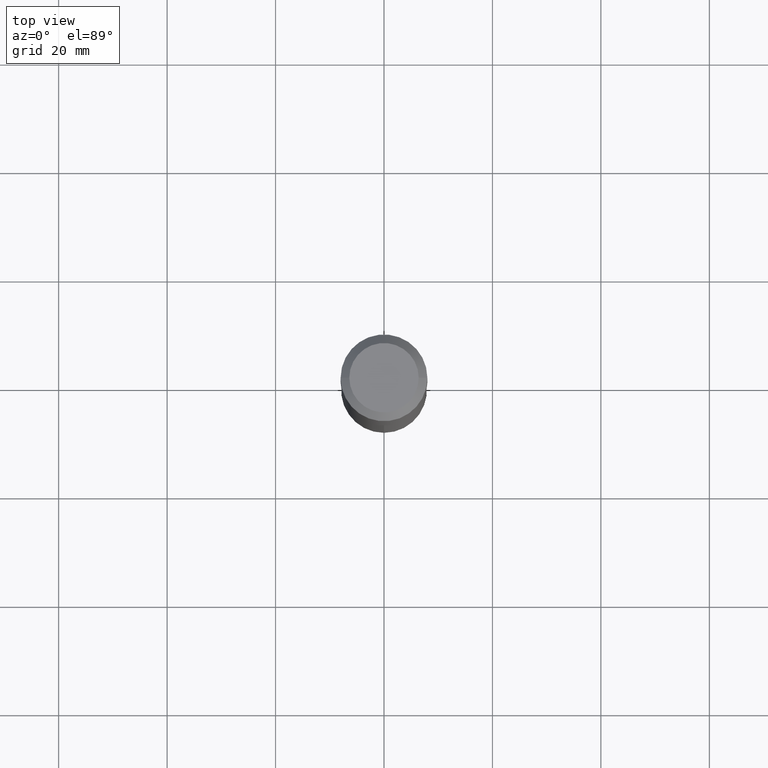
[diagram: clean part render]
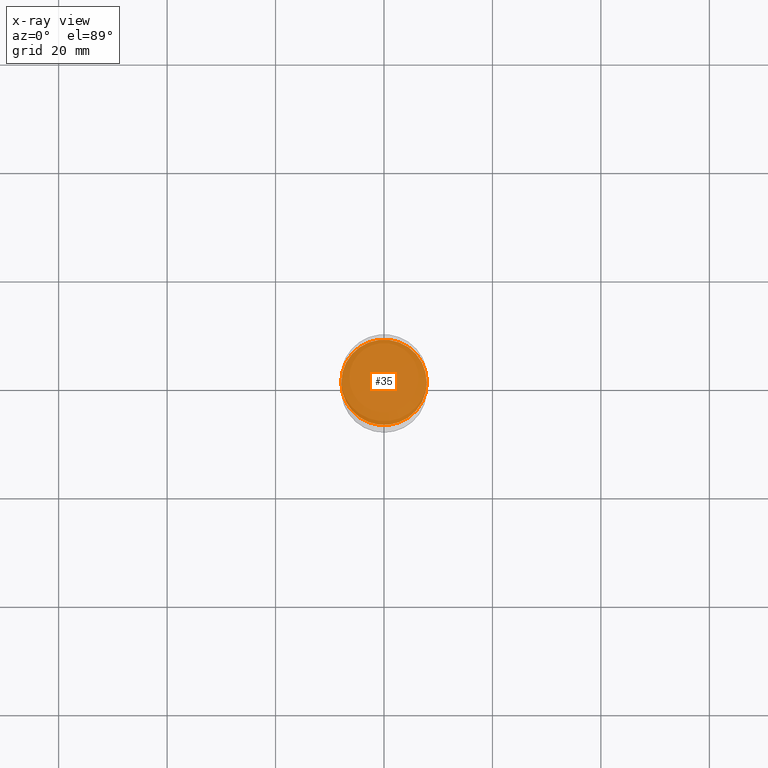
[diagram: x-ray — body ghosted, one internal face saturated and labeled with its STEP entity id]
A machine part, top view, then the same camera in x-ray: the body is ghosted and one INTERNAL B-rep face — a face not visible from any outside direction — is saturated and labeled: STEP entity #35.
In plain terms, the highlighted planar face has unit normal (-0, 0, 1).
Its self-contained STEP definition (entity closure, byte-faithful):
#7 = CARTESIAN_POINT ( 'NONE',  ( 4.813416251214202584E-29, -6.872282719244960739E-15, -1.968299999999999272 ) ) ;
#33 = CARTESIAN_POINT ( 'NONE',  ( 0.3105500000000000482, -9.040841778800431358E-15, -1.968299999999999272 ) ) ;
#34 = VERTEX_POINT ( 'NONE', #301 ) ;
#35 = ADVANCED_FACE ( 'NONE', ( #271 ), #243, .F. ) ;
#54 = ORIENTED_EDGE ( 'NONE', *, *, #159, .F. ) ;
#62 = DIRECTION ( 'NONE',  ( -2.445468806185136597E-29, 3.491481338843145583E-15, 1.000000000000000000 ) ) ;
#71 = AXIS2_PLACEMENT_3D ( 'NONE', #182, #73, #407 ) ;
#73 = DIRECTION ( 'NONE',  ( -2.445468806185136597E-29, 3.491481338843145583E-15, 1.000000000000000000 ) ) ;
#84 = DIRECTION ( 'NONE',  ( 1.000000000000000000, -6.982962677686265922E-15, 4.876176775795935793E-29 ) ) ;
#89 = CIRCLE ( 'NONE', #71, 0.3105500000000000482 ) ;
#159 = EDGE_CURVE ( 'NONE', #34, #247, #345, .T. ) ;
#182 = CARTESIAN_POINT ( 'NONE',  ( 4.813416251214202584E-29, -6.872282719244960739E-15, -1.968299999999999272 ) ) ;
#191 = EDGE_CURVE ( 'NONE', #247, #34, #89, .T. ) ;
#243 = PLANE ( 'NONE',  #363 ) ;
#247 = VERTEX_POINT ( 'NONE', #33 ) ;
#259 = EDGE_LOOP ( 'NONE', ( #399, #54 ) ) ;
#271 = FACE_OUTER_BOUND ( 'NONE', #259, .T. ) ;
#296 = DIRECTION ( 'NONE',  ( 1.000000000000000000, -6.982962677686268288E-15, 0.000000000000000000 ) ) ;
#301 = CARTESIAN_POINT ( 'NONE',  ( -0.3105500000000000482, -4.663043026167858463E-15, -1.968299999999999272 ) ) ;
#345 = CIRCLE ( 'NONE', #374, 0.3105500000000000482 ) ;
#363 = AXIS2_PLACEMENT_3D ( 'NONE', #7, #418, #84 ) ;
#374 = AXIS2_PLACEMENT_3D ( 'NONE', #400, #62, #296 ) ;
#399 = ORIENTED_EDGE ( 'NONE', *, *, #191, .F. ) ;
#400 = CARTESIAN_POINT ( 'NONE',  ( 4.813416251214202584E-29, -6.872282719244960739E-15, -1.968299999999999272 ) ) ;
#407 = DIRECTION ( 'NONE',  ( 1.000000000000000000, -6.982962677686268288E-15, 0.000000000000000000 ) ) ;
#418 = DIRECTION ( 'NONE',  ( -2.438088387897960049E-29, 3.491481338843145188E-15, 1.000000000000000000 ) ) ;